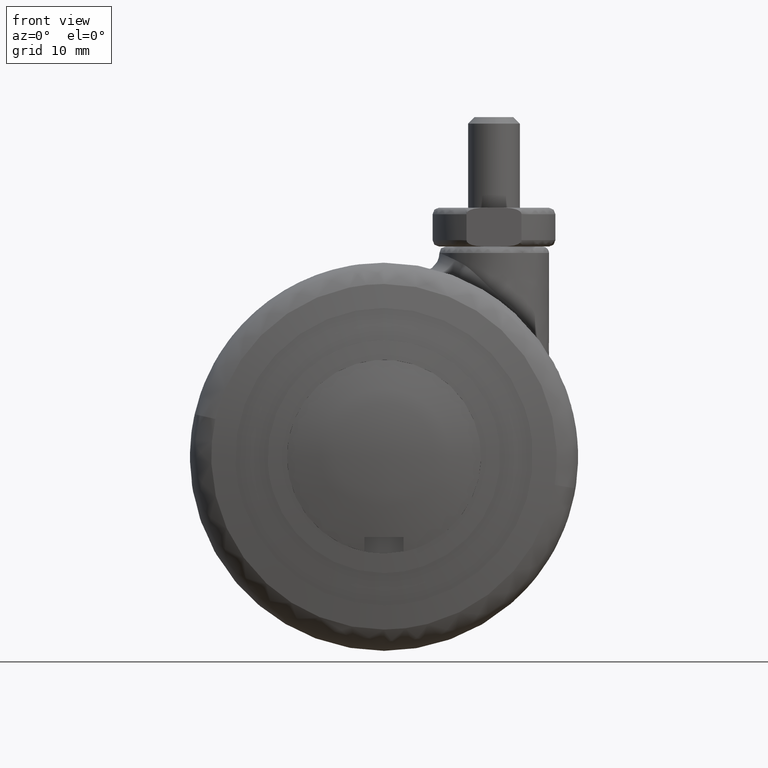
[diagram: clean part render]
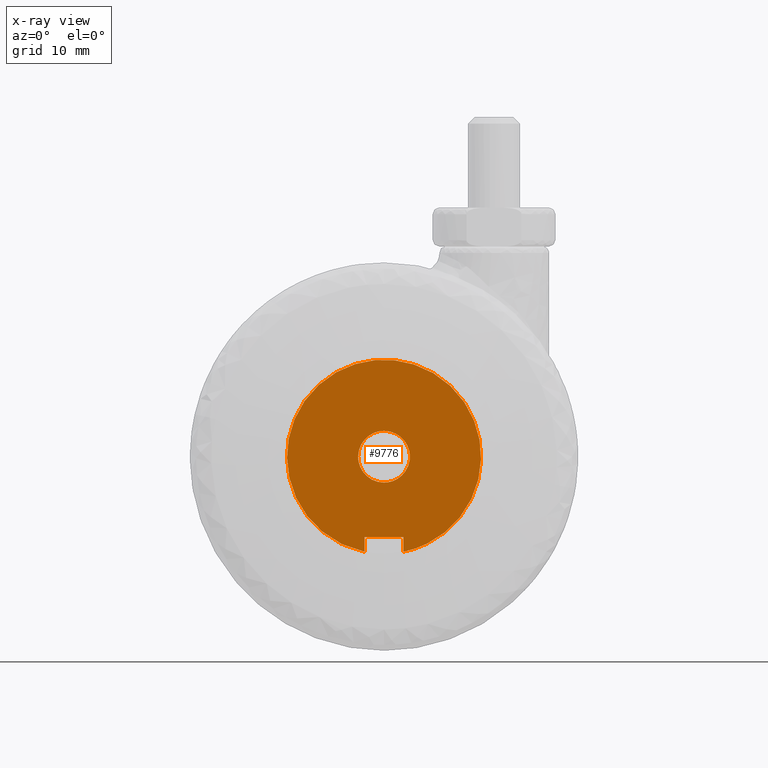
[diagram: x-ray — body ghosted, one internal face saturated and labeled with its STEP entity id]
A machine part, front view, then the same camera in x-ray: the body is ghosted and one INTERNAL B-rep face — a face not visible from any outside direction — is saturated and labeled: STEP entity #9776.
In plain terms, the highlighted face is a freeform B-spline surface patch.
Its self-contained STEP definition (entity closure, byte-faithful):
#6871=CARTESIAN_POINT('',(3.969065433684802,-20.500000000000000,-0.496507384745445));
#6872=VERTEX_POINT('',#6871);
#6878=CARTESIAN_POINT('',(0.0,-20.500000000000000,-4.0));
#6879=VERTEX_POINT('',#6878);
#6880=CARTESIAN_POINT('',(3.969065433684802,-20.500000000000004,-0.496507384745445));
#6881=CARTESIAN_POINT('',(3.530798545691163,-20.499999999999996,-4.000000000000001));
#6882=CARTESIAN_POINT('',(0.0,-20.500000000000000,-4.0));
#6890=(BOUNDED_CURVE()B_SPLINE_CURVE(2,(#6880,#6881,#6882),.UNSPECIFIED.,.F.,.U.)B_SPLINE_CURVE_WITH_KNOTS((3,3),(0.271473732514615,0.500000000000000),.UNSPECIFIED.)CURVE()GEOMETRIC_REPRESENTATION_ITEM()RATIONAL_B_SPLINE_CURVE((0.954005811520390,0.732264823731127,1.0))REPRESENTATION_ITEM(''));
#6891=EDGE_CURVE('',#6872,#6879,#6890,.T.);
#6893=CARTESIAN_POINT('',(-3.999847692254171,-20.500000000000000,0.034906142281510));
#6894=VERTEX_POINT('',#6893);
#6895=CARTESIAN_POINT('',(0.0,-20.500000000000000,-4.0));
#6896=CARTESIAN_POINT('',(-4.000000000000000,-20.500000000000007,-4.000000000000000));
#6897=CARTESIAN_POINT('',(-4.0,-20.500000000000000,0.0));
#6898=CARTESIAN_POINT('',(-4.0,-20.500000000000004,0.017453403570827));
#6899=CARTESIAN_POINT('',(-3.999847692254172,-20.499999999999996,0.034906142281510));
#6907=(BOUNDED_CURVE()B_SPLINE_CURVE(2,(#6895,#6896,#6897,#6898,#6899),.UNSPECIFIED.,.F.,.U.)B_SPLINE_CURVE_WITH_KNOTS((3,2,3),(0.500000000000000,0.750000000000000,0.751539894360353),.UNSPECIFIED.)CURVE()GEOMETRIC_REPRESENTATION_ITEM()RATIONAL_B_SPLINE_CURVE((1.0,0.707106781186548,1.0,0.998195901536654,0.996414028041702))REPRESENTATION_ITEM(''));
#6908=EDGE_CURVE('',#6879,#6894,#6907,.T.);
#6988=CARTESIAN_POINT('',(0.0,-20.500000000000000,4.0));
#6989=VERTEX_POINT('',#6988);
#6990=CARTESIAN_POINT('',(-3.999847692254171,-20.500000000000004,0.034906142281510));
#6991=CARTESIAN_POINT('',(-3.965244841808844,-20.500000000000000,4.000000000000001));
#6992=CARTESIAN_POINT('',(0.0,-20.500000000000000,4.0));
#7000=(BOUNDED_CURVE()B_SPLINE_CURVE(2,(#6990,#6991,#6992),.UNSPECIFIED.,.F.,.U.)B_SPLINE_CURVE_WITH_KNOTS((3,3),(0.751539894360354,1.0),.UNSPECIFIED.)CURVE()GEOMETRIC_REPRESENTATION_ITEM()RATIONAL_B_SPLINE_CURVE((0.996414028041700,0.708910879649895,1.0))REPRESENTATION_ITEM(''));
#7001=EDGE_CURVE('',#6894,#6989,#7000,.T.);
#7003=CARTESIAN_POINT('',(0.0,-20.500000000000000,4.0));
#7004=CARTESIAN_POINT('',(4.000000000000000,-20.500000000000007,4.000000000000000));
#7005=CARTESIAN_POINT('',(4.0,-20.500000000000000,0.0));
#7006=CARTESIAN_POINT('',(4.000000000000001,-20.499999999999996,-0.249217371285172));
#7007=CARTESIAN_POINT('',(3.969065433684802,-20.500000000000004,-0.496507384745445));
#7015=(BOUNDED_CURVE()B_SPLINE_CURVE(2,(#7003,#7004,#7005,#7006,#7007),.UNSPECIFIED.,.F.,.U.)B_SPLINE_CURVE_WITH_KNOTS((3,2,3),(0.0,0.250000000000000,0.271473732514615),.UNSPECIFIED.)CURVE()GEOMETRIC_REPRESENTATION_ITEM()RATIONAL_B_SPLINE_CURVE((1.0,0.707106781186548,1.0,0.974841957455421,0.954005811520390))REPRESENTATION_ITEM(''));
#7016=EDGE_CURVE('',#6989,#6872,#7015,.T.);
#7724=CARTESIAN_POINT('',(-3.0,-20.499999999998401,-12.400000000000000));
#7725=VERTEX_POINT('',#7724);
#7731=CARTESIAN_POINT('',(3.0,-20.500000000000000,-12.400000000000000));
#7732=VERTEX_POINT('',#7731);
#7733=CARTESIAN_POINT('',(-3.0,-20.499999999998401,-12.400000000000000));
#7734=CARTESIAN_POINT('',(3.0,-20.500000000000000,-12.400000000000000));
#7735=QUASI_UNIFORM_CURVE('',1,(#7733,#7734),.UNSPECIFIED.,.F.,.U.);
#7736=EDGE_CURVE('',#7725,#7732,#7735,.T.);
#7767=CARTESIAN_POINT('',(3.0,-20.499999999998401,-14.696938456699060));
#7768=VERTEX_POINT('',#7767);
#7769=CARTESIAN_POINT('',(3.0,-20.500000000000000,-12.400000000000000));
#7770=CARTESIAN_POINT('',(3.0,-20.499999999998401,-14.696938456699060));
#7771=QUASI_UNIFORM_CURVE('',1,(#7769,#7770),.UNSPECIFIED.,.F.,.U.);
#7772=EDGE_CURVE('',#7732,#7768,#7771,.T.);
#7802=CARTESIAN_POINT('',(-3.0,-20.499999999998401,-14.696938456699060));
#7803=VERTEX_POINT('',#7802);
#7809=CARTESIAN_POINT('',(-3.0,-20.499999999998401,-14.696938456699060));
#7810=CARTESIAN_POINT('',(-3.0,-20.499999999998401,-12.400000000000000));
#7811=QUASI_UNIFORM_CURVE('',1,(#7809,#7810),.UNSPECIFIED.,.F.,.U.);
#7812=EDGE_CURVE('',#7803,#7725,#7811,.T.);
#9741=CARTESIAN_POINT('',(-16.498441283035611,-20.500000000000000,16.483362018353649));
#9742=CARTESIAN_POINT('',(-16.498441283035611,-20.500000000000000,-16.180301271586700));
#9743=CARTESIAN_POINT('',(16.498441988758749,-20.500000000000000,16.483362018353649));
#9744=CARTESIAN_POINT('',(16.498441988758749,-20.500000000000000,-16.180301271586700));
#9745=B_SPLINE_SURFACE_WITH_KNOTS('',1,1,((#9741,#9743),(#9742,#9744)),.UNSPECIFIED.,.F.,.F.,.U.,(2,2),(2,2),(0.0,32.663663289940352),(0.0,32.996883271794360),.UNSPECIFIED.);
#9746=ORIENTED_EDGE('',*,*,#7812,.F.);
#9747=CARTESIAN_POINT('',(-3.0,-20.499999999998401,-14.696938456699060));
#9748=CARTESIAN_POINT('',(-16.287048005877153,-20.500000000000004,-11.984731139843753));
#9749=CARTESIAN_POINT('',(-14.924042295076861,-20.500000000000000,1.507634430078121));
#9750=CARTESIAN_POINT('',(-13.561036584276568,-20.500000000000004,14.999999999999998));
#9751=CARTESIAN_POINT('',(0.0,-20.500000000000000,15.0));
#9752=CARTESIAN_POINT('',(13.561036584276568,-20.500000000000004,14.999999999999998));
#9753=CARTESIAN_POINT('',(14.924042295076861,-20.500000000000000,1.507634430078128));
#9754=CARTESIAN_POINT('',(16.287048005877153,-20.500000000000004,-11.984731139843747));
#9755=CARTESIAN_POINT('',(3.0,-20.499999999998401,-14.696938456699060));
#9763=(BOUNDED_CURVE()B_SPLINE_CURVE(2,(#9747,#9748,#9749,#9750,#9751,#9752,#9753,#9754,#9755),.UNSPECIFIED.,.F.,.U.)B_SPLINE_CURVE_WITH_KNOTS((3,2,2,2,3),(0.0,0.250000000000000,0.500000000000000,0.750000000000000,1.0),.UNSPECIFIED.)CURVE()GEOMETRIC_REPRESENTATION_ITEM()RATIONAL_B_SPLINE_CURVE((1.0,0.741791399924941,1.0,0.741791399924941,1.0,0.741791399924941,1.0,0.741791399924941,1.0))REPRESENTATION_ITEM(''));
#9764=EDGE_CURVE('',#7803,#7768,#9763,.T.);
#9765=ORIENTED_EDGE('',*,*,#9764,.T.);
#9766=ORIENTED_EDGE('',*,*,#7772,.F.);
#9767=ORIENTED_EDGE('',*,*,#7736,.F.);
#9768=EDGE_LOOP('',(#9746,#9765,#9766,#9767));
#9769=FACE_OUTER_BOUND('',#9768,.T.);
#9770=ORIENTED_EDGE('',*,*,#6908,.F.);
#9771=ORIENTED_EDGE('',*,*,#6891,.F.);
#9772=ORIENTED_EDGE('',*,*,#7016,.F.);
#9773=ORIENTED_EDGE('',*,*,#7001,.F.);
#9774=EDGE_LOOP('',(#9770,#9771,#9772,#9773));
#9775=FACE_BOUND('',#9774,.T.);
#9776=ADVANCED_FACE('',(#9769,#9775),#9745,.F.);